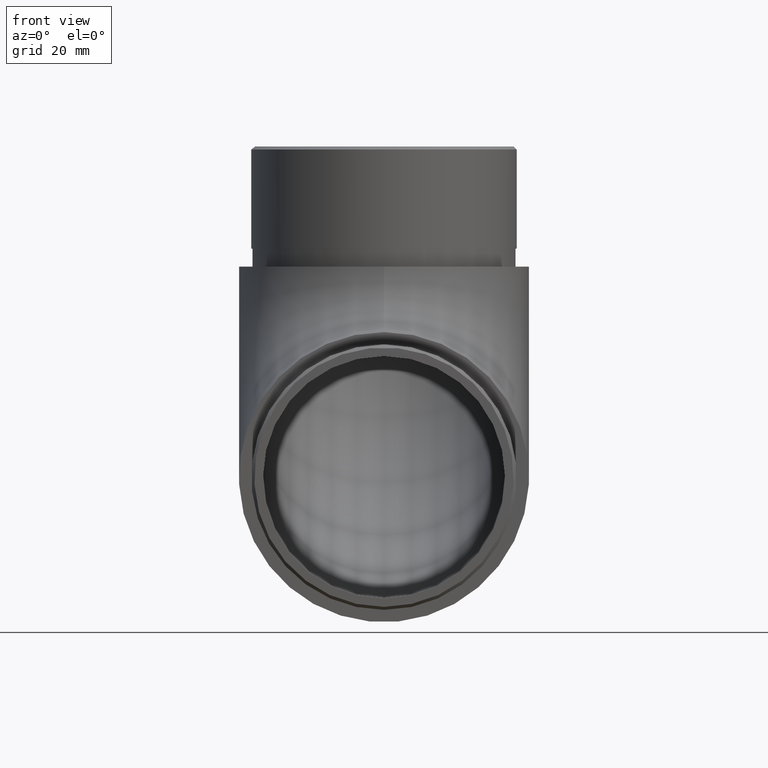
[diagram: clean part render]
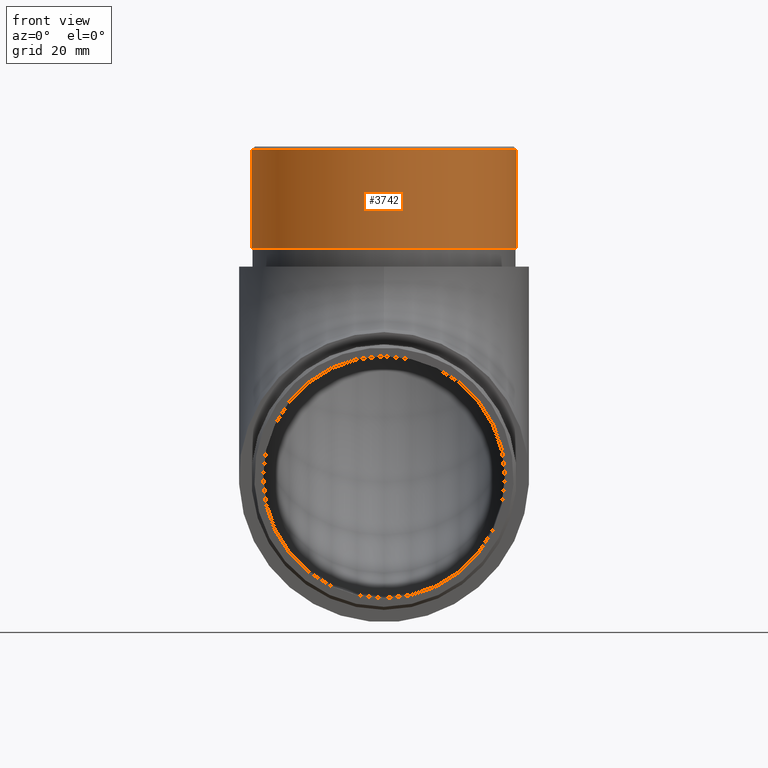
[diagram: same view with one face highlighted and labeled with its STEP entity id]
A machine part, front view. The second image highlights one B-rep face of the part: STEP entity #3742.
In plain terms, the highlighted cylindrical surface (bore or boss wall) has radius 22.1 mm, axis along (-0, -0, -1).
Its self-contained STEP definition (entity closure, byte-faithful):
#115 = FACE_OUTER_BOUND ( 'NONE', #6707, .T. ) ;
#457 = EDGE_CURVE ( 'NONE', #6946, #6946, #12940, .T. ) ;
#1257 = AXIS2_PLACEMENT_3D ( 'NONE', #3328, #13334, #4344 ) ;
#1828 = AXIS2_PLACEMENT_3D ( 'NONE', #10567, #11745, #3911 ) ;
#2062 = VERTEX_POINT ( 'NONE', #7598 ) ;
#2419 = EDGE_CURVE ( 'NONE', #2062, #2062, #6363, .T. ) ;
#3328 = CARTESIAN_POINT ( 'NONE',  ( 0.0000000000000000000, 35.04999999999998300, 62.19999999999999600 ) ) ;
#3742 = ADVANCED_FACE ( 'NONE', ( #11414, #115 ), #9686, .T. ) ;
#3911 = DIRECTION ( 'NONE',  ( -1.000000000000000000, 0.0000000000000000000, 0.0000000000000000000 ) ) ;
#4344 = DIRECTION ( 'NONE',  ( 1.000000000000000000, 0.0000000000000000000, 0.0000000000000000000 ) ) ;
#6363 = CIRCLE ( 'NONE', #7907, 22.10000000000000100 ) ;
#6707 = EDGE_LOOP ( 'NONE', ( #8339 ) ) ;
#6892 = CARTESIAN_POINT ( 'NONE',  ( 0.0000000000000000000, 35.04999999999998300, 78.69999999999997400 ) ) ;
#6946 = VERTEX_POINT ( 'NONE', #12081 ) ;
#7598 = CARTESIAN_POINT ( 'NONE',  ( 22.10000000000000100, 35.04999999999998300, 78.69999999999997400 ) ) ;
#7907 = AXIS2_PLACEMENT_3D ( 'NONE', #6892, #7986, #10218 ) ;
#7986 = DIRECTION ( 'NONE',  ( 0.0000000000000000000, 0.0000000000000000000, -1.000000000000000000 ) ) ;
#8339 = ORIENTED_EDGE ( 'NONE', *, *, #457, .T. ) ;
#9686 = CYLINDRICAL_SURFACE ( 'NONE', #1828, 22.10000000000000100 ) ;
#10218 = DIRECTION ( 'NONE',  ( 1.000000000000000000, 0.0000000000000000000, 0.0000000000000000000 ) ) ;
#10567 = CARTESIAN_POINT ( 'NONE',  ( 0.0000000000000000000, 35.04999999999998300, 79.19999999999998900 ) ) ;
#10952 = EDGE_LOOP ( 'NONE', ( #11338 ) ) ;
#11338 = ORIENTED_EDGE ( 'NONE', *, *, #2419, .T. ) ;
#11414 = FACE_OUTER_BOUND ( 'NONE', #10952, .T. ) ;
#11745 = DIRECTION ( 'NONE',  ( -0.0000000000000000000, -0.0000000000000000000, -1.000000000000000000 ) ) ;
#12081 = CARTESIAN_POINT ( 'NONE',  ( 22.10000000000000100, 35.04999999999998300, 62.19999999999999600 ) ) ;
#12940 = CIRCLE ( 'NONE', #1257, 22.10000000000000100 ) ;
#13334 = DIRECTION ( 'NONE',  ( 0.0000000000000000000, 0.0000000000000000000, 1.000000000000000000 ) ) ;